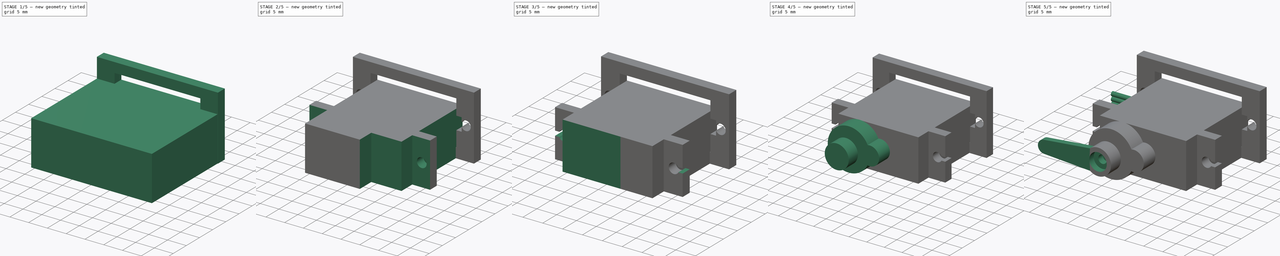
[diagram: build sequence overview — one tinted view per stage of 5, left to right]
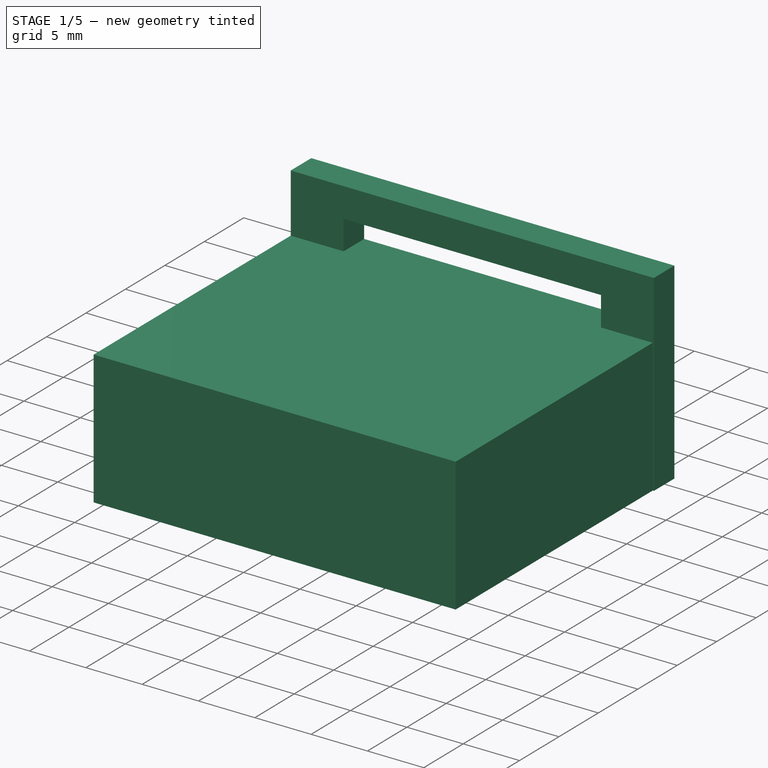
[diagram: stage 1 of 5 — iso view after this stage's code; geometry added in this stage tinted green]
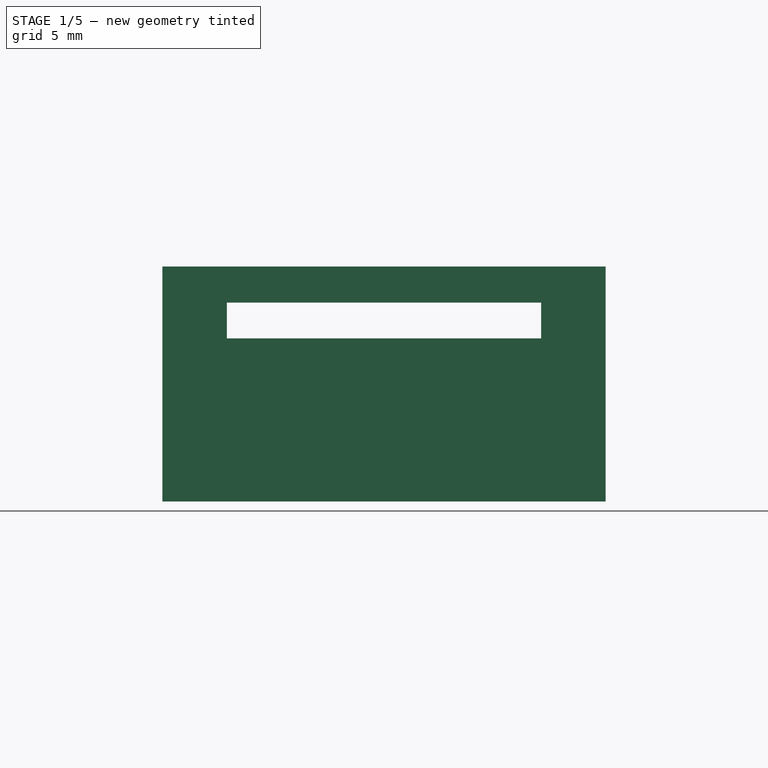
[diagram: stage 1 of 5 — front view after this stage's code; geometry added in this stage tinted green]
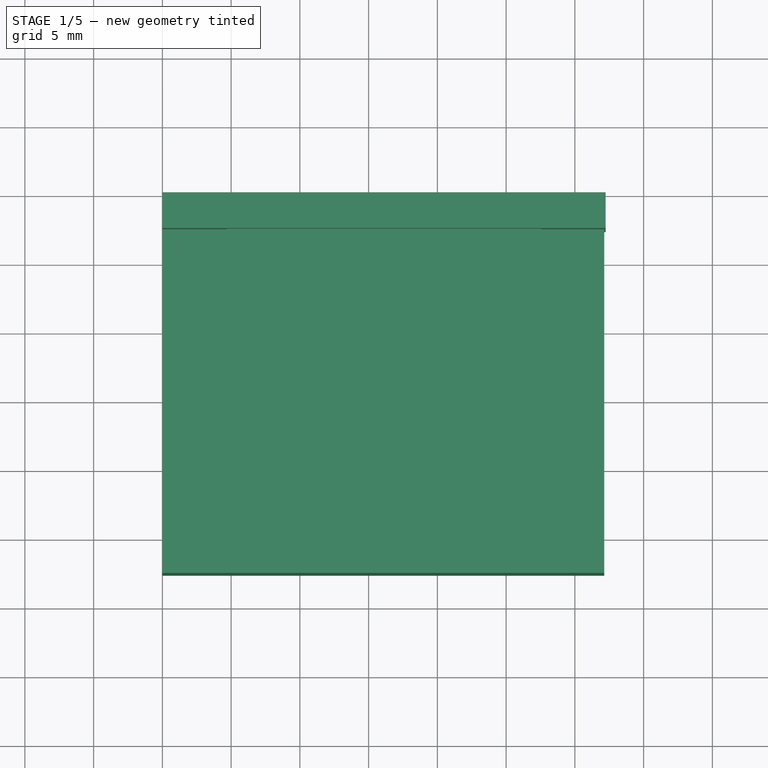
[diagram: stage 1 of 5 — top view after this stage's code; geometry added in this stage tinted green]
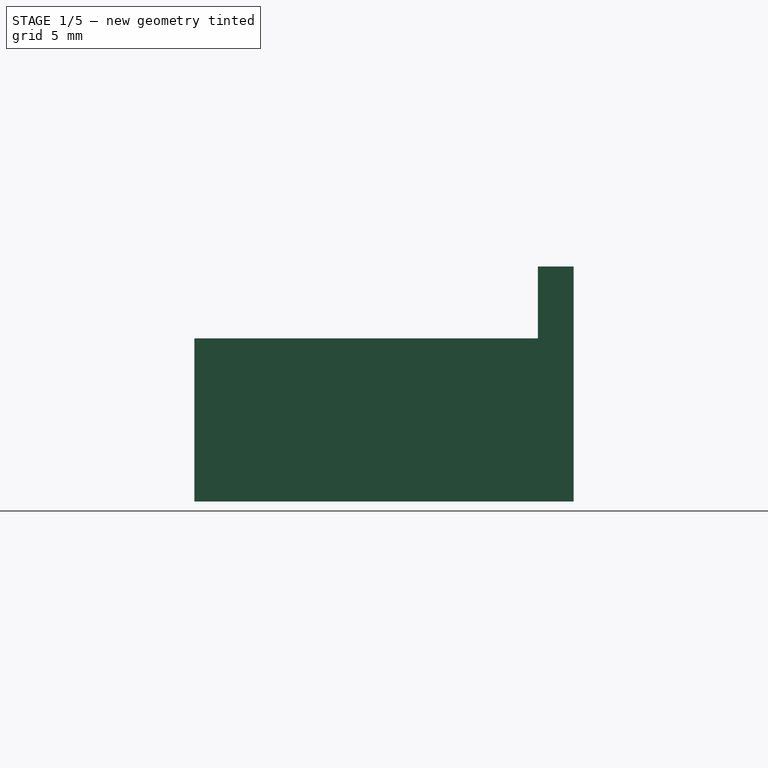
[diagram: stage 1 of 5 — right view after this stage's code; geometry added in this stage tinted green]
FCSTD DOCUMENT  (FreeCAD 0.19R)
Label: assembly
License: All rights reserved
LicenseURL: http://en.wikipedia.org/wiki/All_rights_reserved
objects: Sketcher::SketchObject×23, PartDesign::Pocket×12, PartDesign::Pad×8, PartDesign::Body×2
note: 65 computed .brp shape members not serialized (recipe doc carries the construction recipe); baked Part::Feature solids carry a one-line shape summary decoded from their .brp

FEATURE [Sketcher::SketchObject] Sketch001
  FullyConstrained = true
  MapMode = 5
  Placement = pos=(0,0,0) rot=(1,0,0;1.5708rad)
  Support = -> [XZ_Plane]
  sketch-geometry (4):
    g0: LineSegment StartX=0 StartY=0 StartZ=0 EndX=32.14 EndY=0 EndZ=0
    g1: LineSegment StartX=32.14 StartY=0 StartZ=0 EndX=32.14 EndY=11.86 EndZ=0
    g2: LineSegment StartX=32.14 StartY=11.86 StartZ=0 EndX=0 EndY=11.86 EndZ=0
    g3: LineSegment StartX=0 StartY=11.86 StartZ=0 EndX=0 EndY=0 EndZ=0
  constraints (11):
    c: Coincident(g0,g1)
    c: Coincident(g1,g2)
    c: Coincident(g2,g3)
    c: Coincident(g3,g0)
    c: Horizontal(g0)
    c: Horizontal(g2)
    c: Vertical(g1)
    c: Vertical(g3)
    c: Coincident(g0,g-1)
    c: DistanceX(g2,g2) = 32.14
    c: DistanceY(g1,g1) = 11.86
FEATURE [PartDesign::Pad] Pad
  Direction = (1,1,1)
  Length = 27.59
  Length2 = 100
  Placement = pos=(0,0,0) rot=(1,0,0;1.5708rad)
  Profile = -> Sketch001
  Type = 0
FEATURE [Sketcher::SketchObject] Sketch020
  FullyConstrained = false
  MapMode = 5
  Placement = pos=(0,-19.15,5.7e-15) rot=(1,0,0;1.5708rad)
  Support = -> [Pad006]
  sketch-geometry (5):
    g0: Circle CenterX=29.9168 CenterY=5.9291 CenterZ=0 NormalX=0 NormalY=0 NormalZ=1 AngleXU=0 Radius=1.28232
    g1: GeomPoint X=29.9168 Y=5.9291 Z=0
    g2: GeomPoint X=29.9168 Y=5.9291 Z=0
    g3: GeomPoint X=29.9168 Y=5.9291 Z=0
    g4: LineSegment StartX=28.6804 StartY=6.26898 StartZ=0 EndX=29.9168 EndY=5.9291 EndZ=0
  constraints (3):
    c: Coincident(g3,g0)
    c: PointOnObject(g4,g0)
    c: Coincident(g4,g0)
FEATURE [PartDesign::Body] Body
  Group = -> [Sketch001,Pad,Sketch002,Pocket,Sketch,Pocket001,Sketch003,Pocket002,Sketch004,Pocket003,Sketch005,Pocket004,Sketch006,Sketch007,Pocket005,Sketch008,Pocket006,Sketch010,Sketch011,Pocket007,Sketch012,Pad001,Sketch013,Pad002,Sketch014,Pad003,Sketch015,Pad004,Sketch016,Pad005,Sketch017,Pocket008,Sketch018,Pocket009,Sketch019,Pad006,Sketch020]
  Origin = -> Origin
  Tip = -> Pad006
FEATURE [Sketcher::SketchObject] Sketch023
  FullyConstrained = false
  MapMode = 5
  Placement = pos=(0,0,0) rot=(1,0,0;1.5708rad)
  Support = -> [XZ_Plane001]
  sketch-geometry (4):
    g0: LineSegment StartX=0 StartY=0 StartZ=0 EndX=32.2409 EndY=0 EndZ=0
    g1: LineSegment StartX=32.2409 StartY=0 StartZ=0 EndX=32.2409 EndY=17.0881 EndZ=0
    g2: LineSegment StartX=32.2409 StartY=17.0881 StartZ=0 EndX=0 EndY=17.0881 EndZ=0
    g3: LineSegment StartX=0 StartY=17.0881 StartZ=0 EndX=0 EndY=0 EndZ=0
  constraints (9):
    c: Coincident(g0,g1)
    c: Coincident(g1,g2)
    c: Coincident(g2,g3)
    c: Coincident(g3,g0)
    c: Horizontal(g0)
    c: Horizontal(g2)
    c: Vertical(g1)
    c: Vertical(g3)
    c: Coincident(g0,g-1)
FEATURE [PartDesign::Pad] Pad007
  Direction = (1,1,1)
  Length = 2.6
  Length2 = 100
  Placement = pos=(0,0,0) rot=(1,0,0;1.5708rad)
  Profile = -> Sketch023
  Type = 0
FEATURE [Sketcher::SketchObject] Sketch021
  ExternalGeometry = -> [Pad007]
  FullyConstrained = false
  MapMode = 5
  Placement = pos=(0,-2.6,6e-16) rot=(1,0,0;1.5708rad)
  Support = -> [Pad007]
  sketch-geometry (8):
    g0: LineSegment StartX=4.69545 StartY=14.4641 StartZ=0 EndX=27.5454 EndY=14.4641 EndZ=0
    g1: LineSegment StartX=27.5454 StartY=2.62406 StartZ=0 EndX=4.69545 EndY=2.62406 EndZ=0
    g2: LineSegment StartX=4.69545 StartY=2.62406 StartZ=0 EndX=4.69545 EndY=14.4641 EndZ=0
    g3: GeomPoint X=30.1059 Y=8.54406 Z=0
    g4: Circle CenterX=30.1059 CenterY=8.54406 CenterZ=0 NormalX=0 NormalY=0 NormalZ=1 AngleXU=0 Radius=1.28
    g5: GeomPoint X=2.13496 Y=8.54406 Z=0
    g6: Circle CenterX=2.13496 CenterY=8.54406 CenterZ=0 NormalX=0 NormalY=0 NormalZ=1 AngleXU=0 Radius=1.28
    g7: LineSegment StartX=27.5454 StartY=14.4641 StartZ=0 EndX=27.5454 EndY=2.62406 EndZ=0
  constraints (12):
    c: Coincident(g1,g2)
    c: Coincident(g2,g0)
    c: Horizontal(g0)
    c: Horizontal(g1)
    c: Vertical(g2)
    c: DistanceX(g0,g0) = 22.85
    c: DistanceY(g1,g0) = 11.84
    c: Radius(g4) = 1.28
    c: Radius(g6) = 1.28
    c: Coincident(g7,g0)
    c: Coincident(g7,g1)
    c: Vertical(g7)
FEATURE [PartDesign::Pocket] Pocket010
  BaseFeature = -> Pad007
  Length = 2.6
  Length2 = 100
  Placement = pos=(0,0,0) rot=(1,0,0;1.5708rad)
  Profile = -> Sketch021
  Type = 0
FEATURE [Sketcher::SketchObject] Sketch022
  ExternalGeometry = -> [Pocket010]
  FullyConstrained = false
  MapMode = 5
  Placement = pos=(0,0,0) rot=(-1,0,0;1.5708rad)
  Support = -> [Pocket010]
  sketch-geometry (4):
    g0: LineSegment StartX=26.9487 StartY=-6.79406 StartZ=0 EndX=28.9587 EndY=-6.79406 EndZ=0
    g1: LineSegment StartX=28.9587 StartY=-6.79406 StartZ=0 EndX=28.9587 EndY=-10.2941 EndZ=0
    g2: LineSegment StartX=28.9587 StartY=-10.2941 StartZ=0 EndX=26.9487 EndY=-10.2941 EndZ=0
    g3: LineSegment StartX=26.9487 StartY=-10.2941 StartZ=0 EndX=26.9487 EndY=-6.79406 EndZ=0
  constraints (10):
    c: Coincident(g0,g1)
    c: Coincident(g1,g2)
    c: Coincident(g2,g3)
    c: Coincident(g3,g0)
    c: Horizontal(g0)
    c: Horizontal(g2)
    c: Vertical(g1)
    c: Vertical(g3)
    c: DistanceY(g1,g1) = 3.5
    c: DistanceX(g0,g0) = 2.01
FEATURE [PartDesign::Pocket] Pocket011
  BaseFeature = -> Pocket010
  Length = 5
  Length2 = 100
  Placement = pos=(0,0,0) rot=(1,0,0;1.5708rad)
  Profile = -> Sketch022
  Type = 0
FEATURE [PartDesign::Body] Body001
  Group = -> [Sketch023,Pad007,Sketch021,Pocket010,Sketch022,Pocket011]
  Origin = -> Origin001
  Placement = pos=(32.2,-16.61,-2.59) rot=(0,0,1;3.14159rad)
  Tip = -> Pocket011
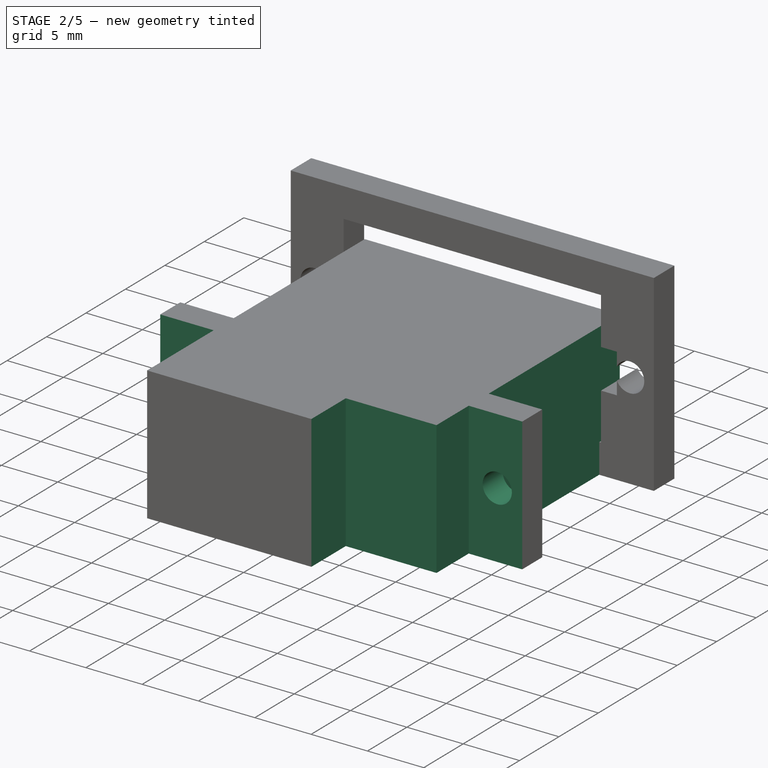
[diagram: stage 2 of 5 — iso view after this stage's code; geometry added in this stage tinted green]
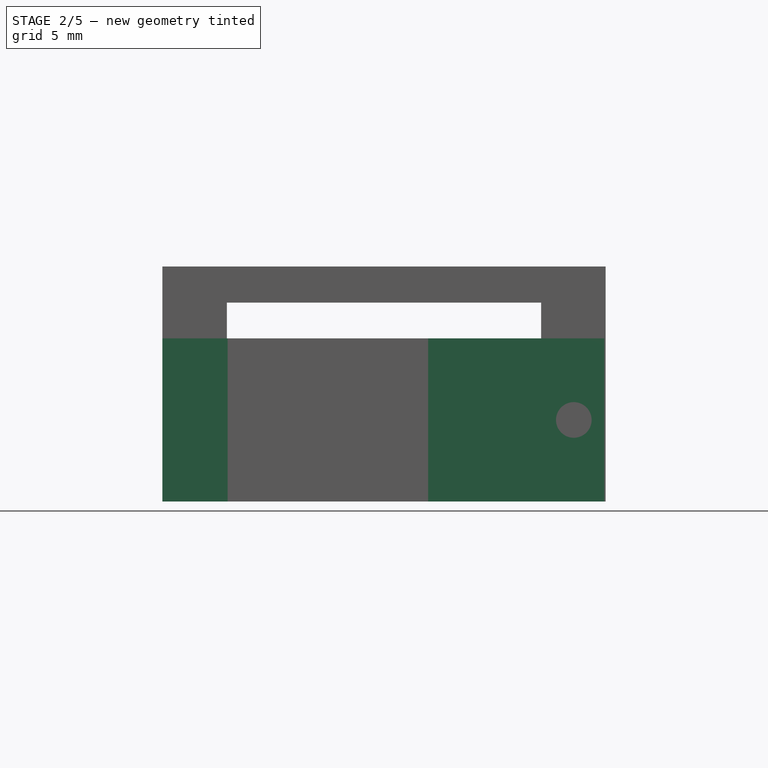
[diagram: stage 2 of 5 — front view after this stage's code; geometry added in this stage tinted green]
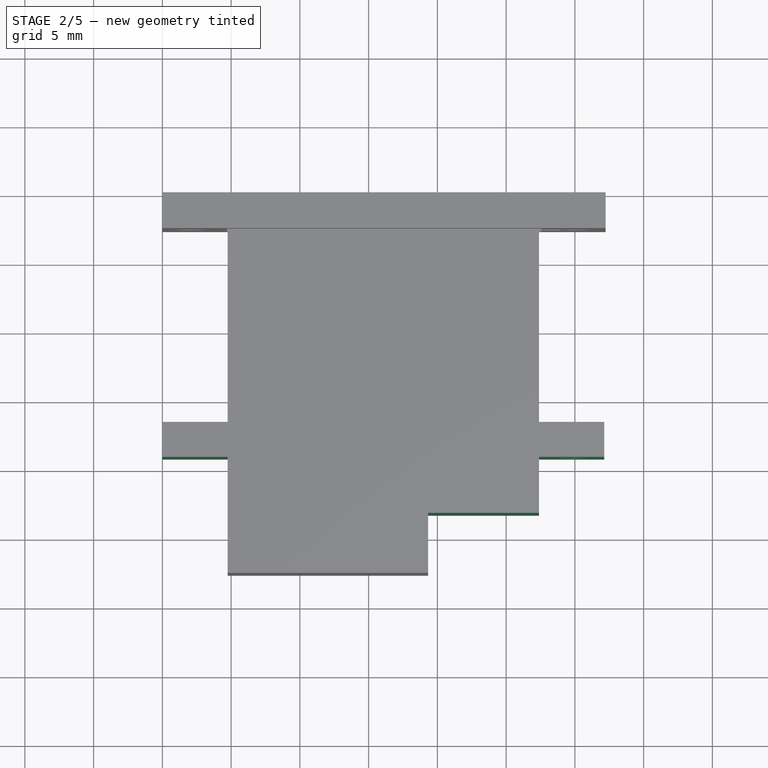
[diagram: stage 2 of 5 — top view after this stage's code; geometry added in this stage tinted green]
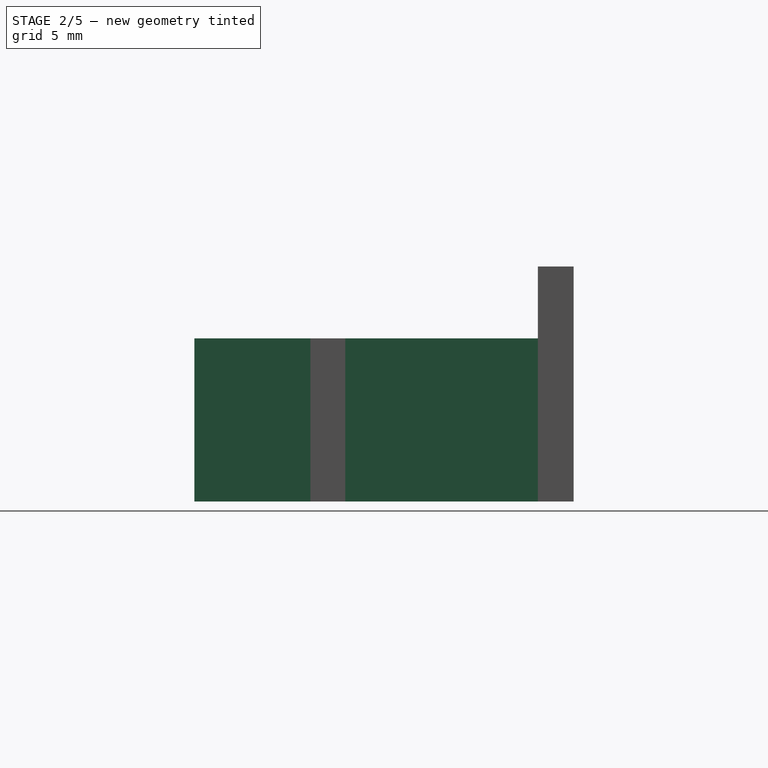
[diagram: stage 2 of 5 — right view after this stage's code; geometry added in this stage tinted green]
FEATURE [Sketcher::SketchObject] Sketch002
  ExternalGeometry = -> [Pad]
  FullyConstrained = false
  MapMode = 5
  Placement = pos=(0,-27.59,6.1e-15) rot=(1,0,0;1.5708rad)
  Support = -> [Pad]
  sketch-geometry (8):
    g0: LineSegment StartX=0 StartY=0 StartZ=0 EndX=4.75 EndY=0 EndZ=0
    g1: LineSegment StartX=4.75 StartY=0 StartZ=0 EndX=4.75 EndY=11.86 EndZ=0
    g2: LineSegment StartX=4.75 StartY=11.86 StartZ=0 EndX=0 EndY=11.86 EndZ=0
    g3: LineSegment StartX=0 StartY=11.86 StartZ=0 EndX=0 EndY=0 EndZ=0
    g4: LineSegment StartX=27.39 StartY=0 StartZ=0 EndX=32.14 EndY=0 EndZ=0
    g5: LineSegment StartX=32.14 StartY=0 StartZ=0 EndX=32.14 EndY=11.86 EndZ=0
    g6: LineSegment StartX=32.14 StartY=11.86 StartZ=0 EndX=27.39 EndY=11.86 EndZ=0
    g7: LineSegment StartX=27.39 StartY=11.86 StartZ=0 EndX=27.39 EndY=0 EndZ=0
  constraints (23):
    c: Coincident(g0,g1)
    c: Coincident(g1,g2)
    c: Coincident(g2,g3)
    c: Coincident(g3,g0)
    c: Horizontal(g0)
    c: Horizontal(g2)
    c: Vertical(g1)
    c: Vertical(g3)
    c: Coincident(g4,g5)
    c: Coincident(g5,g6)
    c: Coincident(g6,g7)
    c: Coincident(g7,g4)
    c: Horizontal(g4)
    c: Horizontal(g6)
    c: Vertical(g5)
    c: Vertical(g7)
    c: DistanceY(g0,g-3) = 0
    c: DistanceY(g0,g4) = 0
    c: DistanceX(g4,g4) = 4.75
    c: DistanceX(g0,g0) = 4.75
    c: DistanceY(g2,g6) = 0
    c: DistanceX(g0,g4) = 32.14
    c: DistanceY(g0,g2) = 11.86
FEATURE [PartDesign::Pocket] Pocket
  BaseFeature = -> Pad
  Length = 8.44
  Length2 = 100
  Placement = pos=(0,0,0) rot=(1,0,0;1.5708rad)
  Profile = -> Sketch002
  Type = 0
FEATURE [Sketcher::SketchObject] Sketch
  FullyConstrained = true
  MapMode = 5
  Placement = pos=(0,0,0) rot=(-1,0,0;1.5708rad)
  Support = -> [Pocket]
  sketch-geometry (8):
    g0: LineSegment StartX=0 StartY=0 StartZ=0 EndX=4.75 EndY=0 EndZ=0
    g1: LineSegment StartX=4.75 StartY=0 StartZ=0 EndX=4.75 EndY=-11.86 EndZ=0
    g2: LineSegment StartX=4.75 StartY=-11.86 StartZ=0 EndX=0 EndY=-11.86 EndZ=0
    g3: LineSegment StartX=0 StartY=-11.86 StartZ=0 EndX=0 EndY=0 EndZ=0
    g4: LineSegment StartX=27.39 StartY=0 StartZ=0 EndX=32.14 EndY=0 EndZ=0
    g5: LineSegment StartX=32.14 StartY=0 StartZ=0 EndX=32.14 EndY=-11.86 EndZ=0
    g6: LineSegment StartX=32.14 StartY=-11.86 StartZ=0 EndX=27.39 EndY=-11.86 EndZ=0
    g7: LineSegment StartX=27.39 StartY=-11.86 StartZ=0 EndX=27.39 EndY=0 EndZ=0
  constraints (23):
    c: Coincident(g0,g1)
    c: Coincident(g1,g2)
    c: Coincident(g2,g3)
    c: Coincident(g3,g0)
    c: Horizontal(g0)
    c: Horizontal(g2)
    c: Vertical(g1)
    c: Vertical(g3)
    c: Coincident(g0,g-1)
    c: DistanceY(g2,g0) = 11.86
    c: DistanceX(g0,g0) = 4.75
    c: Coincident(g4,g5)
    c: Coincident(g5,g6)
    c: Coincident(g6,g7)
    c: Coincident(g7,g4)
    c: Horizontal(g4)
    c: Horizontal(g6)
    c: Vertical(g5)
    c: Vertical(g7)
    c: DistanceY(g6,g4) = 11.86
    c: Equal(g0,g4) = 4.75
    c: DistanceX(g0,g4) = 32.14
    c: DistanceY(g4,g0) = 0
FEATURE [PartDesign::Pocket] Pocket001
  BaseFeature = -> Pocket
  Length = 16.61
  Length2 = 100
  Placement = pos=(0,0,0) rot=(1,0,0;1.5708rad)
  Profile = -> Sketch
  Type = 0
FEATURE [Sketcher::SketchObject] Sketch003
  ExternalGeometry = -> [Pocket001]
  FullyConstrained = true
  MapMode = 5
  Placement = pos=(0,-27.59,6.1e-15) rot=(1,0,0;1.5708rad)
  Support = -> [Pocket001]
  sketch-geometry (4):
    g0: LineSegment StartX=27.39 StartY=11.86 StartZ=0 EndX=19.33 EndY=11.86 EndZ=0
    g1: LineSegment StartX=19.33 StartY=11.86 StartZ=0 EndX=19.33 EndY=0 EndZ=0
    g2: LineSegment StartX=19.33 StartY=0 StartZ=0 EndX=27.39 EndY=0 EndZ=0
    g3: LineSegment StartX=27.39 StartY=0 StartZ=0 EndX=27.39 EndY=11.86 EndZ=0
  constraints (11):
    c: Coincident(g0,g1)
    c: Coincident(g1,g2)
    c: Coincident(g2,g3)
    c: Coincident(g3,g0)
    c: Horizontal(g0)
    c: Horizontal(g2)
    c: Vertical(g1)
    c: Vertical(g3)
    c: Coincident(g0,g-3)
    c: PointOnObject(g1,g-1)
    c: DistanceX(g2,g2) = 8.06
FEATURE [PartDesign::Pocket] Pocket002
  BaseFeature = -> Pocket001
  Length = 4.36
  Length2 = 100
  Placement = pos=(0,0,0) rot=(1,0,0;1.5708rad)
  Profile = -> Sketch003
  Type = 0
FEATURE [Sketcher::SketchObject] Sketch004
  ExternalGeometry = -> [Pocket002]
  FullyConstrained = true
  MapMode = 5
  Placement = pos=(0,-19.15,5.7e-15) rot=(1,0,0;1.5708rad)
  Support = -> [Pocket002]
  sketch-geometry (1):
    g0: Circle CenterX=29.925 CenterY=5.93 CenterZ=0 NormalX=0 NormalY=0 NormalZ=1 AngleXU=0 Radius=1.295
  constraints (5):
    c: Diameter(g0) = 2.59
    c: DistanceX(g-4,g0) = 2.535
    c: DistanceY(g-3,g-3) = 11.86
    c: DistanceX(g-4,g-3) = 4.75
    c: DistanceY(g0,g-3) = 5.93
FEATURE [PartDesign::Pocket] Pocket003
  BaseFeature = -> Pocket002
  Length = 2.54
  Length2 = 100
  Placement = pos=(0,0,0) rot=(1,0,0;1.5708rad)
  Profile = -> Sketch004
  Type = 0
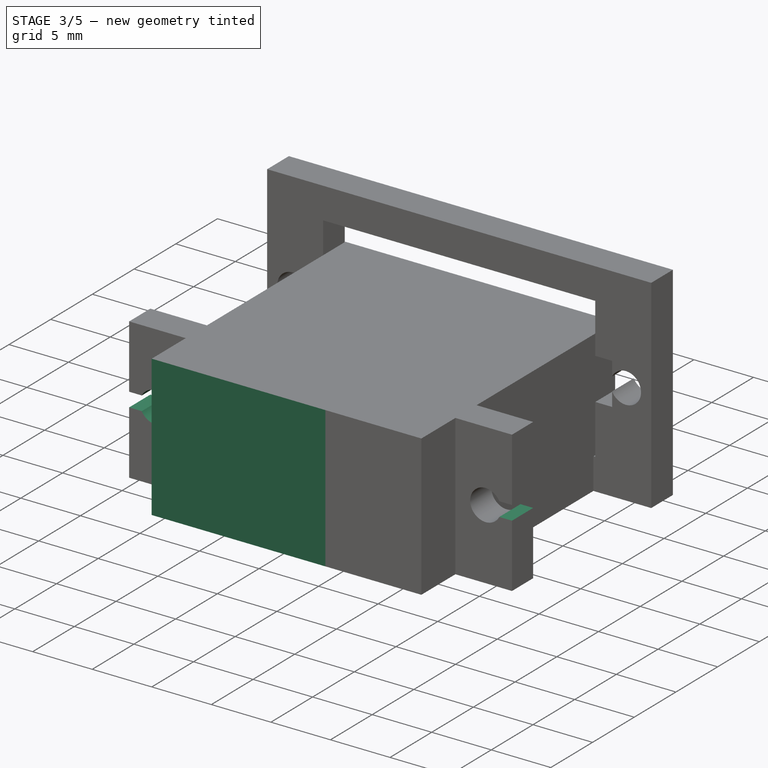
[diagram: stage 3 of 5 — iso view after this stage's code; geometry added in this stage tinted green]
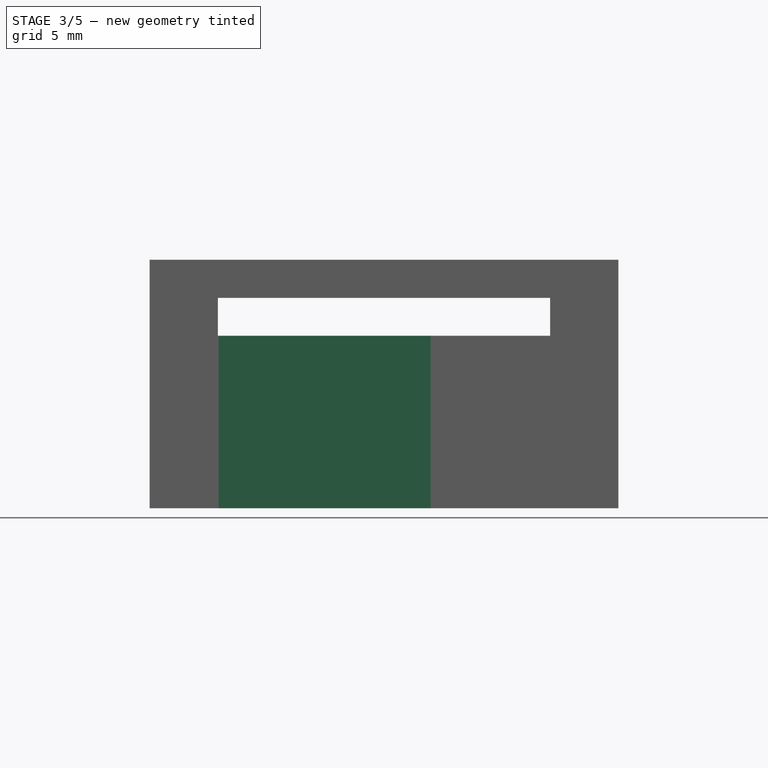
[diagram: stage 3 of 5 — front view after this stage's code; geometry added in this stage tinted green]
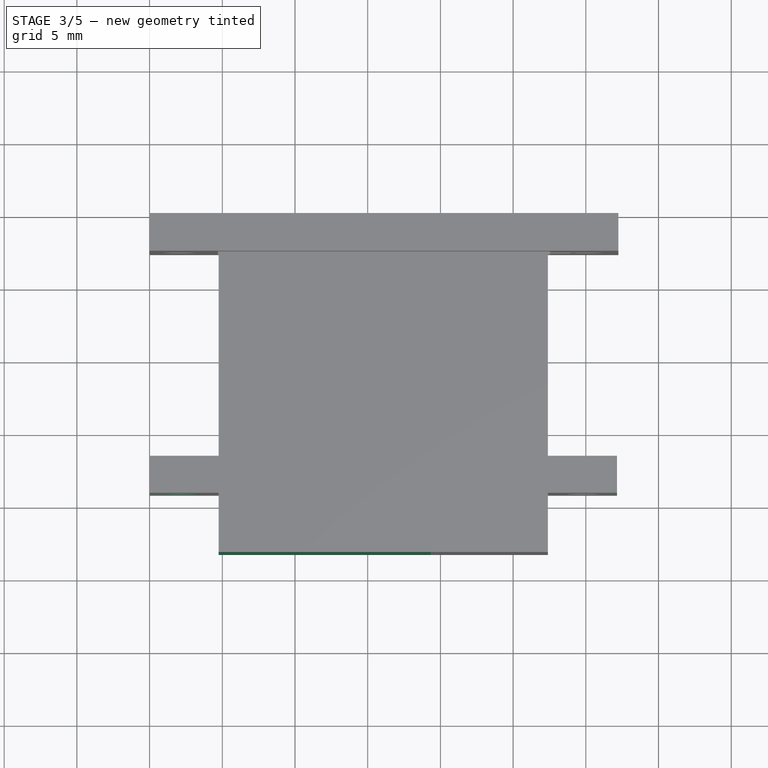
[diagram: stage 3 of 5 — top view after this stage's code; geometry added in this stage tinted green]
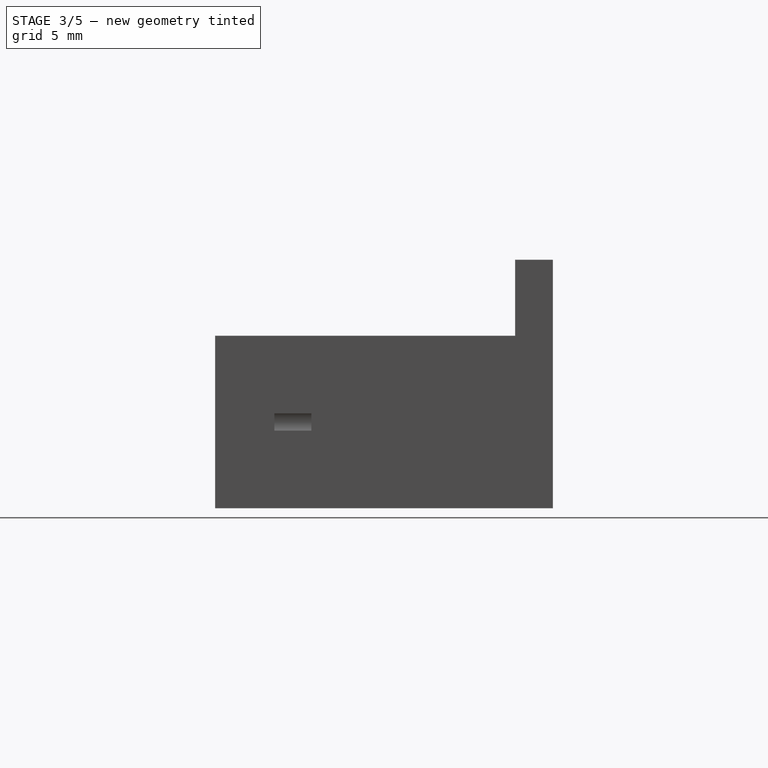
[diagram: stage 3 of 5 — right view after this stage's code; geometry added in this stage tinted green]
FEATURE [Sketcher::SketchObject] Sketch005
  ExternalGeometry = -> [Pocket003]
  FullyConstrained = true
  MapMode = 5
  Placement = pos=(0,-19.15,5.7e-15) rot=(1,0,0;1.5708rad)
  Support = -> [Pocket003]
  sketch-geometry (1):
    g0: Circle CenterX=2.215 CenterY=5.93 CenterZ=0 NormalX=0 NormalY=0 NormalZ=1 AngleXU=0 Radius=1.295
  constraints (4):
    c: Diameter(g0) = 2.59
    c: DistanceY(g-1,g0) = 5.93
    c: DistanceY(g-1,g-3) = 11.86
    c: DistanceX(g0,g-4) = 2.535
FEATURE [PartDesign::Pocket] Pocket004
  BaseFeature = -> Pocket003
  Length = 2.54
  Length2 = 100
  Placement = pos=(0,0,0) rot=(1,0,0;1.5708rad)
  Profile = -> Sketch005
  Type = 0
FEATURE [Sketcher::SketchObject] Sketch006
  FullyConstrained = true
  MapMode = 5
  Placement = pos=(0,-19.15,5.7e-15) rot=(1,0,0;1.5708rad)
  Support = -> [Pocket004]
FEATURE [Sketcher::SketchObject] Sketch007
  ExternalGeometry = -> [Pocket004]
  FullyConstrained = false
  MapMode = 5
  Placement = pos=(0,-19.15,5.7e-15) rot=(1,0,0;1.5708rad)
  Support = -> [Pocket004]
  sketch-geometry (4):
    g0: LineSegment StartX=31.0732 StartY=5.335 StartZ=0 EndX=32.14 EndY=5.335 EndZ=0
    g1: LineSegment StartX=32.14 StartY=5.335 StartZ=0 EndX=32.14 EndY=6.525 EndZ=0
    g2: LineSegment StartX=32.14 StartY=6.525 StartZ=0 EndX=31.0732 EndY=6.525 EndZ=0
    g3: LineSegment StartX=31.0732 StartY=6.525 StartZ=0 EndX=31.0732 EndY=5.335 EndZ=0
  constraints (11):
    c: Coincident(g0,g1)
    c: Coincident(g1,g2)
    c: Coincident(g2,g3)
    c: Coincident(g3,g0)
    c: Horizontal(g0)
    c: Horizontal(g2)
    c: Vertical(g1)
    c: Vertical(g3)
    c: DistanceY(g-1,g0) = 5.335
    c: DistanceY(g1,g-3) = 5.335
    c: DistanceX(g1,g-3) = 0
FEATURE [PartDesign::Pocket] Pocket005
  BaseFeature = -> Pocket004
  Length = 2.54
  Length2 = 100
  Placement = pos=(0,0,0) rot=(1,0,0;1.5708rad)
  Profile = -> Sketch007
  Type = 0
FEATURE [Sketcher::SketchObject] Sketch008
  ExternalGeometry = -> [Pocket005]
  FullyConstrained = true
  MapMode = 5
  Placement = pos=(0,-19.15,5.7e-15) rot=(1,0,0;1.5708rad)
  Support = -> [Pocket005]
  sketch-geometry (4):
    g0: LineSegment StartX=1.5 StartY=6.525 StartZ=0 EndX=0 EndY=6.525 EndZ=0
    g1: LineSegment StartX=0 StartY=6.525 StartZ=0 EndX=0 EndY=5.335 EndZ=0
    g2: LineSegment StartX=0 StartY=5.335 StartZ=0 EndX=1.5 EndY=5.335 EndZ=0
    g3: LineSegment StartX=1.5 StartY=5.335 StartZ=0 EndX=1.5 EndY=6.525 EndZ=0
  constraints (12):
    c: Coincident(g0,g1)
    c: Coincident(g1,g2)
    c: Coincident(g2,g3)
    c: Coincident(g3,g0)
    c: Horizontal(g0)
    c: Horizontal(g2)
    c: Vertical(g1)
    c: Vertical(g3)
    c: DistanceY(g-1,g1) = 5.335
    c: DistanceY(g0,g-3) = 5.335
    c: DistanceX(g0,g-3) = 0
    c: DistanceX(g1,g2) = 1.5
FEATURE [PartDesign::Pocket] Pocket006
  BaseFeature = -> Pocket005
  Length = 2.54
  Length2 = 100
  Placement = pos=(0,0,0) rot=(1,0,0;1.5708rad)
  Profile = -> Sketch008
  Type = 0
FEATURE [Sketcher::SketchObject] Sketch010
  FullyConstrained = true
  MapMode = 5
  Placement = pos=(0,-27.59,6.1e-15) rot=(1,0,0;1.5708rad)
  Support = -> [Pocket006]
FEATURE [Sketcher::SketchObject] Sketch011
  ExternalGeometry = -> [Pocket006]
  FullyConstrained = true
  MapMode = 5
  Placement = pos=(0,-27.59,6.1e-15) rot=(1,0,0;1.5708rad)
  Support = -> [Pocket006]
  sketch-geometry (4):
    g0: LineSegment StartX=4.75 StartY=11.86 StartZ=0 EndX=19.33 EndY=11.86 EndZ=0
    g1: LineSegment StartX=19.33 StartY=11.86 StartZ=0 EndX=19.33 EndY=0 EndZ=0
    g2: LineSegment StartX=19.33 StartY=0 StartZ=0 EndX=4.75 EndY=0 EndZ=0
    g3: LineSegment StartX=4.75 StartY=0 StartZ=0 EndX=4.75 EndY=11.86 EndZ=0
  constraints (10):
    c: Coincident(g0,g1)
    c: Coincident(g1,g2)
    c: Coincident(g2,g3)
    c: Coincident(g3,g0)
    c: Horizontal(g0)
    c: Horizontal(g2)
    c: Vertical(g1)
    c: Vertical(g3)
    c: Coincident(g0,g-4)
    c: Coincident(g1,g-5)
FEATURE [PartDesign::Pocket] Pocket007
  BaseFeature = -> Pocket006
  Length = 4.36
  Length2 = 100
  Placement = pos=(0,0,0) rot=(1,0,0;1.5708rad)
  Profile = -> Sketch011
  Type = 0
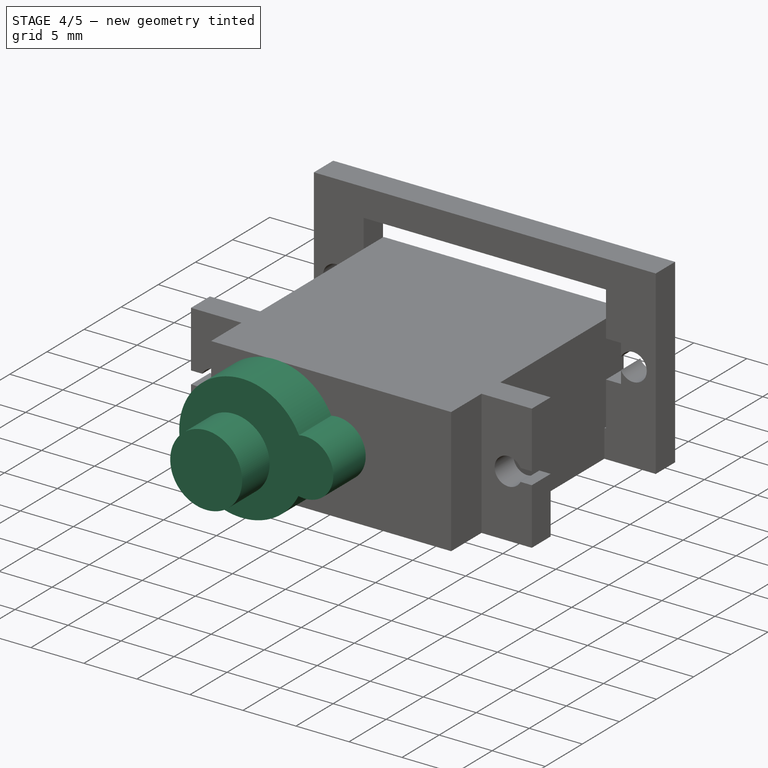
[diagram: stage 4 of 5 — iso view after this stage's code; geometry added in this stage tinted green]
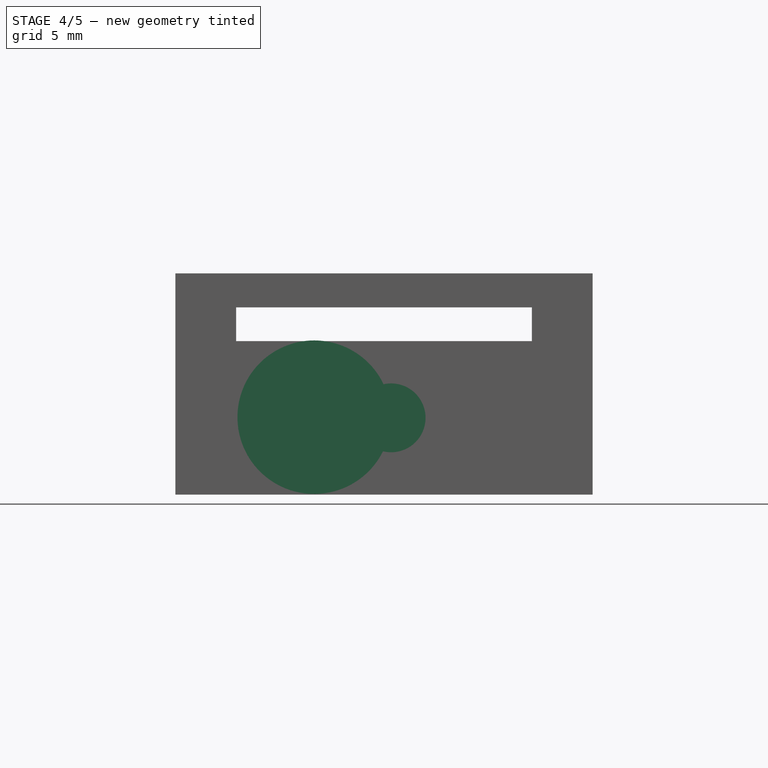
[diagram: stage 4 of 5 — front view after this stage's code; geometry added in this stage tinted green]
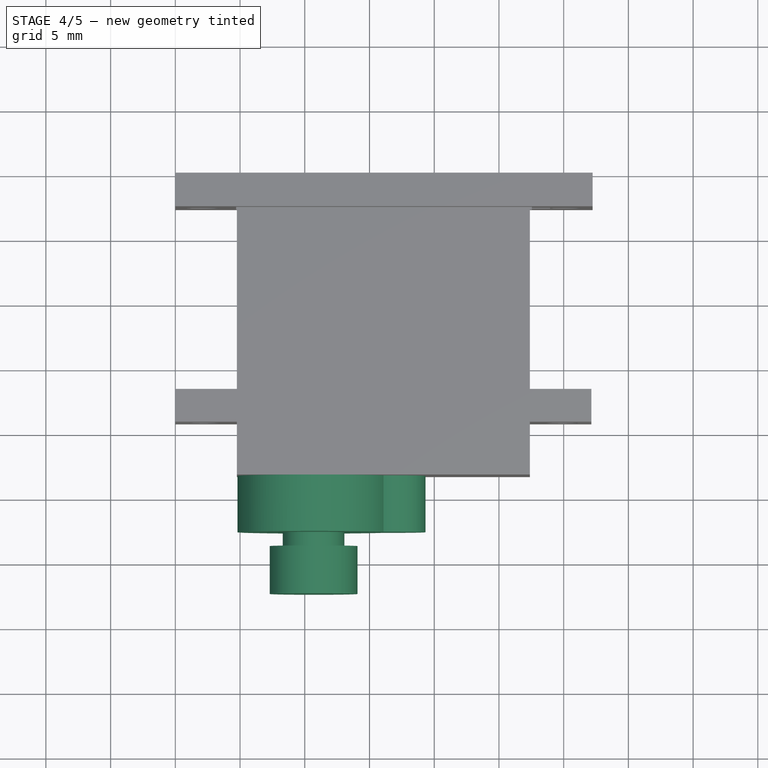
[diagram: stage 4 of 5 — top view after this stage's code; geometry added in this stage tinted green]
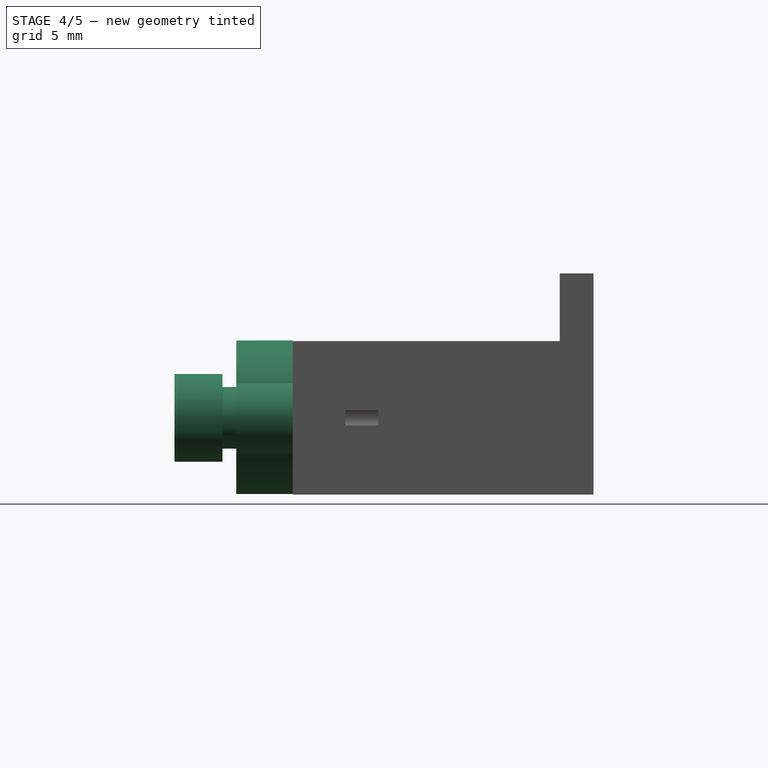
[diagram: stage 4 of 5 — right view after this stage's code; geometry added in this stage tinted green]
FEATURE [Sketcher::SketchObject] Sketch012
  ExternalGeometry = -> [Pocket007]
  FullyConstrained = true
  MapMode = 5
  Placement = pos=(0,-23.23,2.09e-14) rot=(1,0,0;1.5708rad)
  Support = -> [Pocket007]
  sketch-geometry (1):
    g0: Circle CenterX=10.73 CenterY=5.98 CenterZ=0 NormalX=0 NormalY=0 NormalZ=1 AngleXU=0 Radius=5.93
  constraints (3):
    c: Diameter(g0) = 11.86
    c: DistanceX(g-3,g0) = 5.98
    c: DistanceY(g-3,g0) = 5.98
FEATURE [PartDesign::Pad] Pad001
  BaseFeature = -> Pocket007
  Direction = (1,1,1)
  Length = 4.36
  Length2 = 100
  Placement = pos=(0,0,0) rot=(1,0,0;1.5708rad)
  Profile = -> Sketch012
  Type = 0
FEATURE [Sketcher::SketchObject] Sketch013
  ExternalGeometry = -> [Pad001]
  FullyConstrained = true
  MapMode = 5
  Placement = pos=(0,-23.23,2.09e-14) rot=(1,0,0;1.5708rad)
  Support = -> [Pad001]
  sketch-geometry (1):
    g0: Circle CenterX=16.67 CenterY=5.93 CenterZ=0 NormalX=0 NormalY=0 NormalZ=1 AngleXU=0 Radius=2.66
  constraints (3):
    c: Diameter(g0) = 5.32
    c: DistanceX(g0,g-3) = 2.66
    c: DistanceY(g0,g-3) = 5.93
FEATURE [PartDesign::Pad] Pad002
  BaseFeature = -> Pad001
  Direction = (1,1,1)
  Length = 4.36
  Length2 = 100
  Placement = pos=(0,0,0) rot=(1,0,0;1.5708rad)
  Profile = -> Sketch013
  Refine = true
  Type = 0
FEATURE [Sketcher::SketchObject] Sketch014
  ExternalGeometry = -> [Pad002]
  FullyConstrained = true
  MapMode = 5
  Placement = pos=(2.8e-15,-27.59,3.17e-14) rot=(1,0,0;1.5708rad)
  Support = -> [Pad002]
  sketch-geometry (1):
    g0: Circle CenterX=10.68 CenterY=5.93 CenterZ=0 NormalX=0 NormalY=0 NormalZ=1 AngleXU=0 Radius=2.38
  constraints (3):
    c: Diameter(g0) = 4.76
    c: DistanceY(g-3,g0) = 5.93
    c: DistanceX(g-3,g0) = 5.93
FEATURE [PartDesign::Pad] Pad003
  BaseFeature = -> Pad002
  Direction = (1,1,1)
  Length = 1.07
  Length2 = 100
  Placement = pos=(0,0,0) rot=(1,0,0;1.5708rad)
  Profile = -> Sketch014
  Type = 0
FEATURE [Sketcher::SketchObject] Sketch015
  ExternalGeometry = -> [Pad003]
  FullyConstrained = true
  MapMode = 5
  Placement = pos=(0,-28.66,4.93e-14) rot=(1,0,0;1.5708rad)
  Support = -> [Pad003]
  sketch-geometry (1):
    g0: Circle CenterX=10.68 CenterY=5.93 CenterZ=0 NormalX=0 NormalY=0 NormalZ=1 AngleXU=0 Radius=3.39
  constraints (3):
    c: DistanceY(g-3,g0) = 5.93
    c: DistanceX(g-3,g0) = 5.93
    c: Diameter(g0) = 6.78
FEATURE [PartDesign::Pad] Pad004
  BaseFeature = -> Pad003
  Direction = (1,1,1)
  Length = 3.7
  Length2 = 100
  Placement = pos=(0,0,0) rot=(1,0,0;1.5708rad)
  Profile = -> Sketch015
  Type = 0
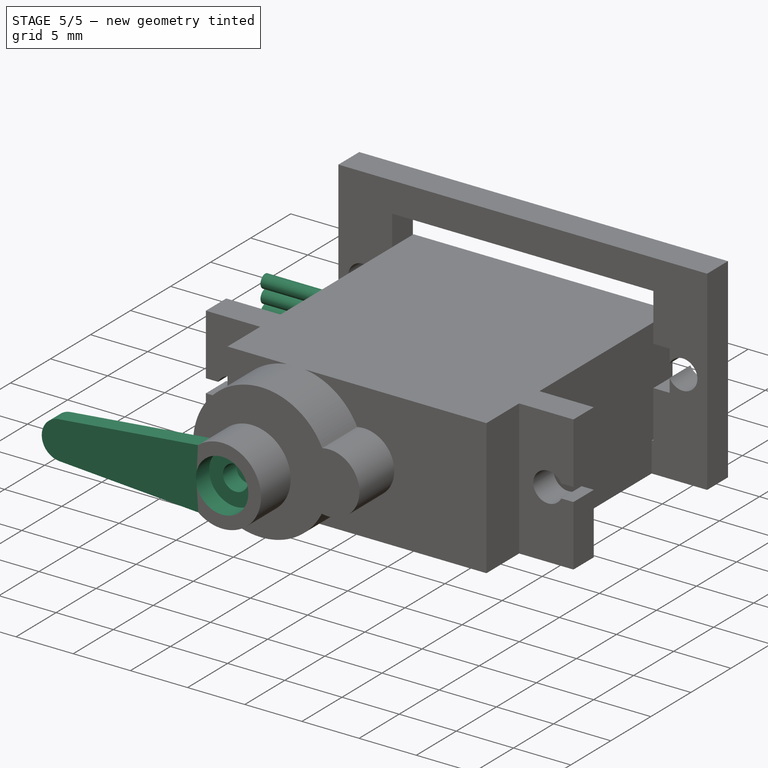
[diagram: stage 5 of 5 — iso view after this stage's code; geometry added in this stage tinted green]
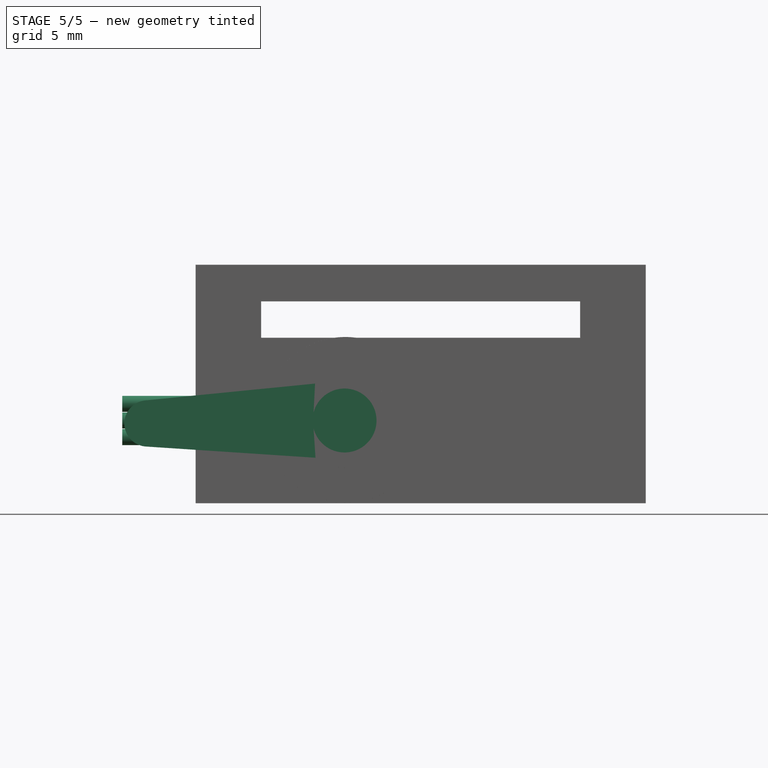
[diagram: stage 5 of 5 — front view after this stage's code; geometry added in this stage tinted green]
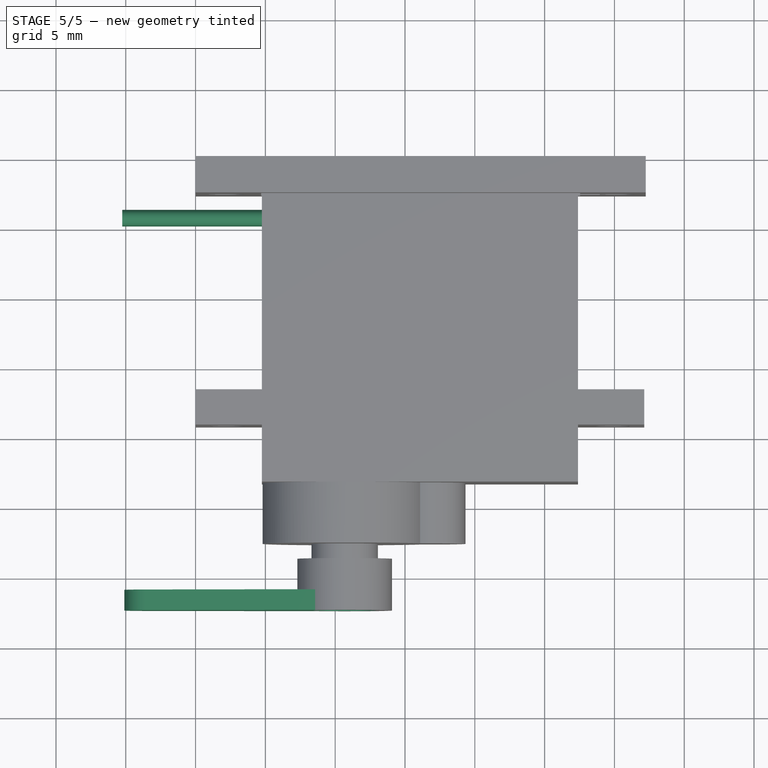
[diagram: stage 5 of 5 — top view after this stage's code; geometry added in this stage tinted green]
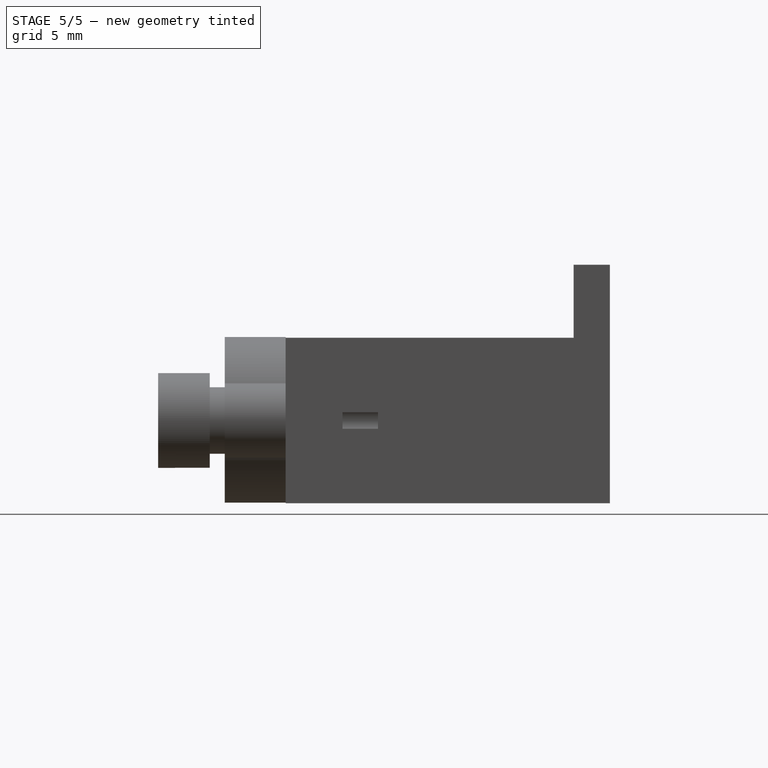
[diagram: stage 5 of 5 — right view after this stage's code; geometry added in this stage tinted green]
FEATURE [Sketcher::SketchObject] Sketch016
  FullyConstrained = false
  MapMode = 5
  Placement = pos=(1.13e-14,-32.36,5.89e-14) rot=(1,0,0;1.5708rad)
  Support = -> [Pad004]
  sketch-geometry (5):
    g0: LineSegment StartX=8.62 StartY=8.58 StartZ=0 EndX=8.62 EndY=3.26 EndZ=0
    g1: LineSegment StartX=8.62 StartY=8.58 StartZ=0 EndX=-3.60679 EndY=7.36718 EndZ=0
    g2: LineSegment StartX=-3.55263 StartY=4.0654 StartZ=0 EndX=8.62 EndY=3.26 EndZ=0
    g3: ArcOfCircle CenterX=-3.44325 CenterY=5.71853 CenterZ=0 NormalX=0 NormalY=0 NormalZ=1 AngleXU=0 Radius=1.65675 StartAngle=1.66967 EndAngle=4.64632
    g4: GeomPoint X=-5.1 Y=5.71853 Z=0
  constraints (11):
    c: Vertical(g0)
    c: DistanceY(g0,g0) = 5.32
    c: DistanceY(g-1,g0) = 3.26
    c: DistanceX(g-1,g0) = 8.62
    c: Coincident(g1,g0)
    c: Coincident(g2,g0)
    c: Tangent(g1,g3) = -1.5708
    c: Tangent(g2,g3) = -1.5708
    c: PointOnObject(g4,g3)
    c: DistanceY(g3,g4) = 0
    c: DistanceX(g4,g0) = 13.72
FEATURE [PartDesign::Pad] Pad005
  BaseFeature = -> Pad004
  Direction = (1,1,1)
  Length = 1.48
  Length2 = 100
  Placement = pos=(0,0,0) rot=(1,0,0;1.5708rad)
  Profile = -> Sketch016
  Refine = true
  Reversed = true
  Type = 0
FEATURE [Sketcher::SketchObject] Sketch017
  FullyConstrained = false
  MapMode = 5
  Placement = pos=(2.17e-14,-32.36,6.34e-14) rot=(1,0,0;1.5708rad)
  Support = -> [Pad005]
  sketch-geometry (1):
    g0: Circle CenterX=10.6689 CenterY=5.93 CenterZ=0 NormalX=0 NormalY=0 NormalZ=1 AngleXU=0 Radius=2.29
  constraints (2):
    c: Diameter(g0) = 4.58
    c: DistanceY(g-1,g0) = 5.93
FEATURE [PartDesign::Pocket] Pocket008
  BaseFeature = -> Pad005
  Length = 1.66
  Length2 = 100
  Placement = pos=(0,0,0) rot=(1,0,0;1.5708rad)
  Profile = -> Sketch017
  Type = 0
FEATURE [Sketcher::SketchObject] Sketch018
  ExternalGeometry = -> [Pocket008]
  FullyConstrained = true
  MapMode = 5
  Placement = pos=(3.16e-14,-30.7,5.5e-14) rot=(1,0,0;1.5708rad)
  Support = -> [Pocket008]
  sketch-geometry (1):
    g0: Circle CenterX=10.68 CenterY=5.93 CenterZ=0 NormalX=0 NormalY=0 NormalZ=1 AngleXU=0 Radius=1.1
  constraints (3):
    c: Diameter(g0) = 2.2
    c: DistanceY(g-1,g0) = 5.93
    c: DistanceX(g-3,g0) = 5.93
FEATURE [PartDesign::Pocket] Pocket009
  BaseFeature = -> Pocket008
  Length = 1.66
  Length2 = 100
  Placement = pos=(0,0,0) rot=(1,0,0;1.5708rad)
  Profile = -> Sketch018
  Type = 0
FEATURE [Sketcher::SketchObject] Sketch019
  ExternalGeometry = -> [Pocket009]
  FullyConstrained = false
  MapMode = 5
  Placement = pos=(4.75,0,0) rot=(0.707107,0,-0.707107;3.14159rad)
  Support = -> [Pocket009]
  sketch-geometry (3):
    g0: Circle CenterX=-5.93 CenterY=4.25632 CenterZ=0 NormalX=0 NormalY=0 NormalZ=1 AngleXU=0 Radius=0.575
    g1: Circle CenterX=-7.12 CenterY=4.25632 CenterZ=0 NormalX=0 NormalY=0 NormalZ=1 AngleXU=0 Radius=0.575
    g2: Circle CenterX=-4.74514 CenterY=4.25632 CenterZ=0 NormalX=0 NormalY=0 NormalZ=1 AngleXU=0 Radius=0.575
  constraints (5):
    c: DistanceX(g-3,g-1) = 11.86
    c: Diameter(g1) = 1.15
    c: Equal(g1,g0)
    c: Equal(g1,g2)
    c: DistanceY(g1,g0) = 0
FEATURE [PartDesign::Pad] Pad006
  BaseFeature = -> Pocket009
  Direction = (1,1,1)
  Length = 10
  Length2 = 100
  Placement = pos=(0,0,0) rot=(1,0,0;1.5708rad)
  Profile = -> Sketch019
  Type = 0
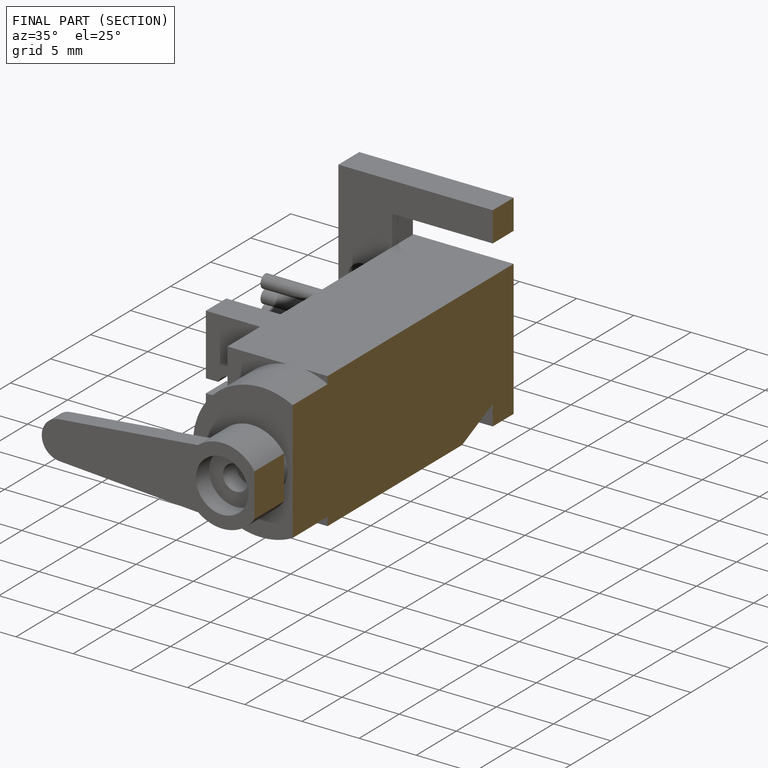
[diagram: finished part — half-section view (interior)]
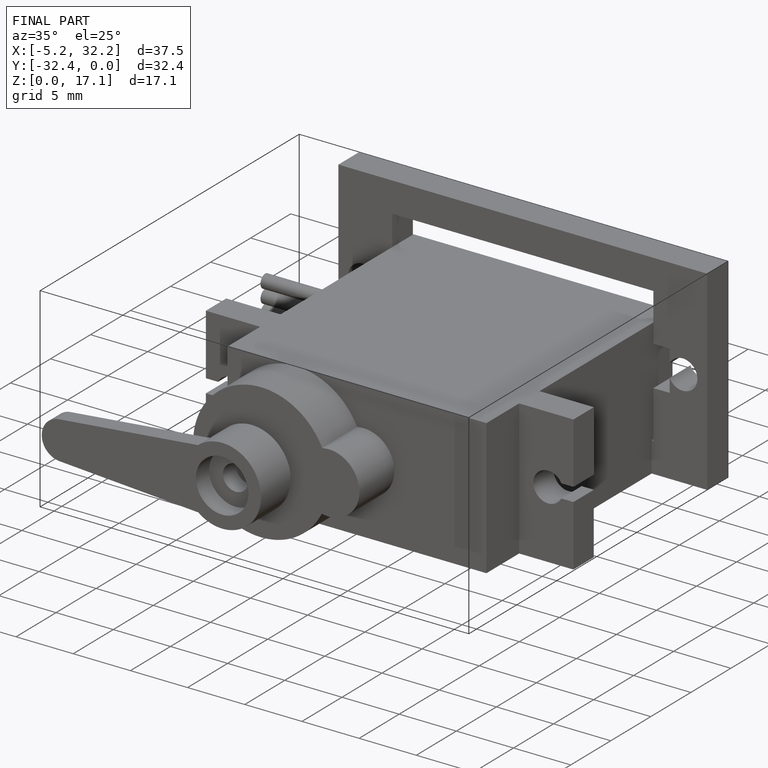
[diagram: finished part — iso view with bounding-box wireframe]
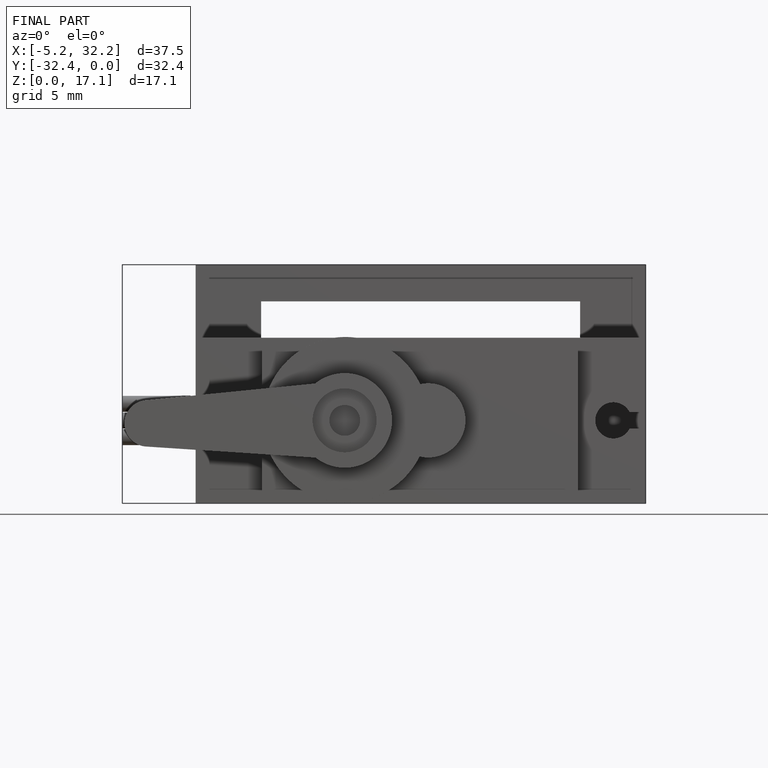
[diagram: finished part — front view with bounding-box wireframe]
